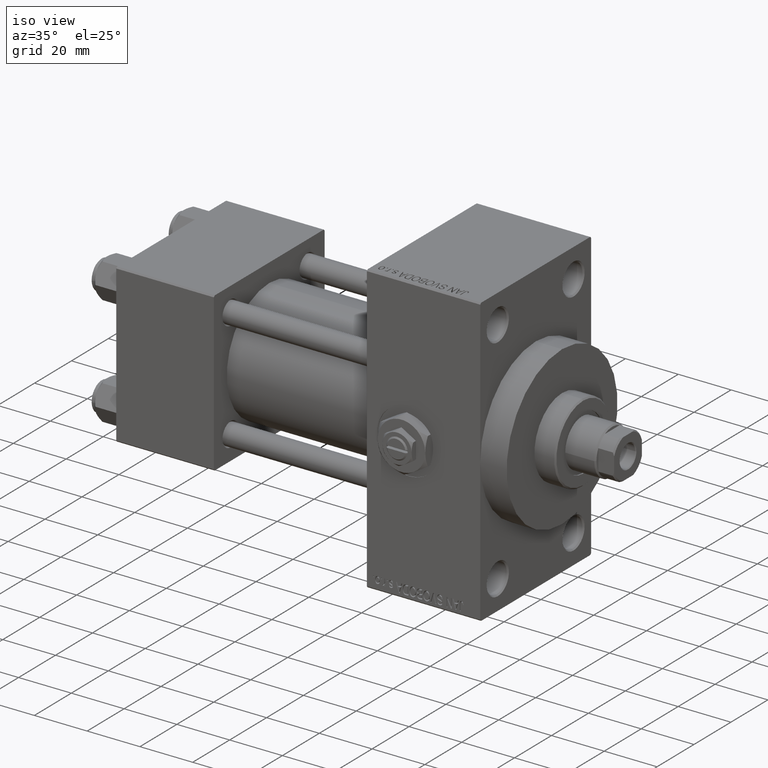
[diagram: clean part render]
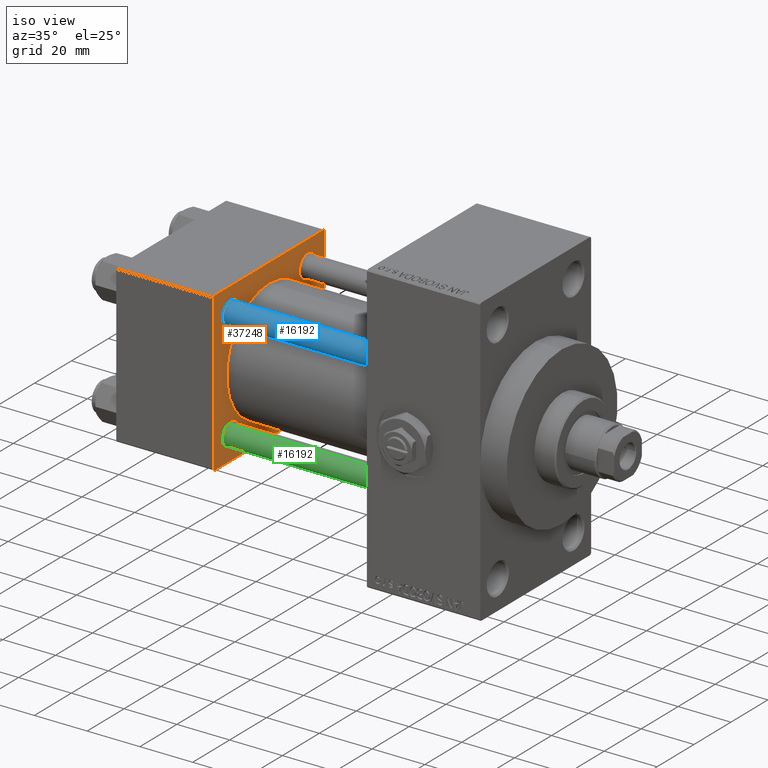
[diagram: same view with three faces highlighted in distinct colors, each labeled with its STEP entity id]
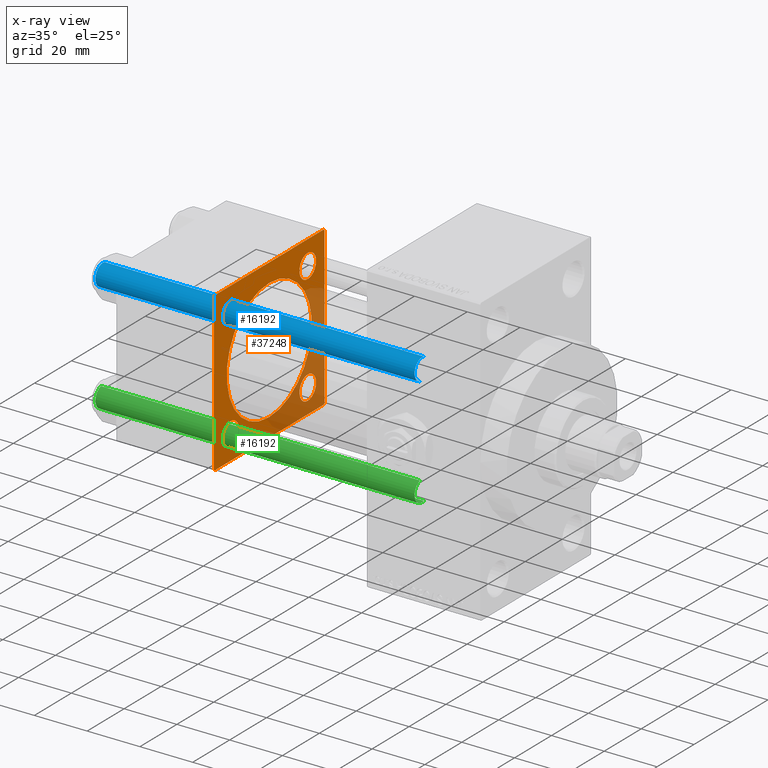
[diagram: x-ray of the same camera — body ghosted, the three highlighted faces saturated]
A machine part, iso view with three faces highlighted in distinct colors.
The next image is the same camera in x-ray (body ghosted, the three faces saturated) — at least one of them is partly hidden behind the body in this view.
Their STEP definitions:

[orange] entity #37248 — the highlighted planar face has unit normal (-1, 0, 0).
#614 = CARTESIAN_POINT ( 'NONE',  ( 37.00000000000000000, 20.84999999999999787, -16.35000000000002274 ) ) ;
#1567 = ORIENTED_EDGE ( 'NONE', *, *, #23536, .F. ) ;
#1606 = DIRECTION ( 'NONE',  ( -0.000000000000000000, 0.7071067811865574537, 0.7071067811865376918 ) ) ;
#1917 = CARTESIAN_POINT ( 'NONE',  ( 37.00000000000000000, 29.99999999999999289, -30.00000000000000000 ) ) ;
#2398 = LINE ( 'NONE', #6561, #14532 ) ;
#3251 = EDGE_LOOP ( 'NONE', ( #24930, #45841 ) ) ;
#3763 = CARTESIAN_POINT ( 'NONE',  ( 37.00000000000000000, 20.84999999999999787, 25.34999999999997655 ) ) ;
#3933 = DIRECTION ( 'NONE',  ( 0.000000000000000000, 0.7071067811865474617, -0.7071067811865474617 ) ) ;
#5045 = VERTEX_POINT ( 'NONE', #20585 ) ;
#5113 = AXIS2_PLACEMENT_3D ( 'NONE', #27568, #39592, #42583 ) ;
#5132 = EDGE_CURVE ( 'NONE', #28822, #14926, #47916, .T. ) ;
#5155 = DIRECTION ( 'NONE',  ( 0.000000000000000000, 0.000000000000000000, 1.000000000000000000 ) ) ;
#5293 = CARTESIAN_POINT ( 'NONE',  ( 37.00000000000000000, 29.99999999999999289, -29.50000000000000000 ) ) ;
#6010 = VERTEX_POINT ( 'NONE', #34360 ) ;
#6042 = DIRECTION ( 'NONE',  ( 0.000000000000000000, 0.000000000000000000, 1.000000000000000000 ) ) ;
#6050 = CARTESIAN_POINT ( 'NONE',  ( 37.00000000000000000, -2.602085213965210642E-15, 0.000000000000000000 ) ) ;
#6561 = CARTESIAN_POINT ( 'NONE',  ( 37.00000000000000000, 29.49999999999999289, 30.00000000000000000 ) ) ;
#7284 = CARTESIAN_POINT ( 'NONE',  ( 37.00000000000000000, 20.84999999999999787, 16.35000000000002274 ) ) ;
#7601 = PLANE ( 'NONE',  #38835 ) ;
#7690 = ORIENTED_EDGE ( 'NONE', *, *, #44117, .T. ) ;
#8450 = CIRCLE ( 'NONE', #18667, 23.00000000000000000 ) ;
#8544 = CARTESIAN_POINT ( 'NONE',  ( 37.00000000000000000, 20.84999999999999787, -20.85000000000000142 ) ) ;
#9352 = ORIENTED_EDGE ( 'NONE', *, *, #33840, .T. ) ;
#9428 = ORIENTED_EDGE ( 'NONE', *, *, #14517, .T. ) ;
#9498 = DIRECTION ( 'NONE',  ( 0.000000000000000000, 0.000000000000000000, 1.000000000000000000 ) ) ;
#9546 = ORIENTED_EDGE ( 'NONE', *, *, #28444, .F. ) ;
#9901 = CARTESIAN_POINT ( 'NONE',  ( 37.00000000000000000, -29.50000000000000000, -30.00000000000000711 ) ) ;
#9992 = VECTOR ( 'NONE', #35649, 1000.000000000000000 ) ;
#10010 = CARTESIAN_POINT ( 'NONE',  ( 37.00000000000000000, -20.84999999999999076, 25.34999999999998010 ) ) ;
#10171 = CIRCLE ( 'NONE', #28262, 4.499999999999976019 ) ;
#10404 = VERTEX_POINT ( 'NONE', #18314 ) ;
#10502 = LINE ( 'NONE', #21116, #9992 ) ;
#10644 = VERTEX_POINT ( 'NONE', #9901 ) ;
#10982 = CARTESIAN_POINT ( 'NONE',  ( 37.00000000000000000, -30.00000000000000000, 29.49999999999999289 ) ) ;
#11051 = DIRECTION ( 'NONE',  ( 0.000000000000000000, 0.000000000000000000, 1.000000000000000000 ) ) ;
#11530 = AXIS2_PLACEMENT_3D ( 'NONE', #43512, #40054, #25533 ) ;
#11533 = DIRECTION ( 'NONE',  ( -1.000000000000000000, 0.000000000000000000, -0.000000000000000000 ) ) ;
#11755 = VECTOR ( 'NONE', #1606, 999.9999999999998863 ) ;
#11768 = LINE ( 'NONE', #45509, #12823 ) ;
#11849 = CARTESIAN_POINT ( 'NONE',  ( 37.00000000000000000, 20.84999999999999787, -25.34999999999997655 ) ) ;
#12823 = VECTOR ( 'NONE', #45751, 1000.000000000000000 ) ;
#12858 = VERTEX_POINT ( 'NONE', #3763 ) ;
#13505 = CARTESIAN_POINT ( 'NONE',  ( 37.00000000000000000, 29.99999999999999289, -29.50000000000000000 ) ) ;
#13628 = CARTESIAN_POINT ( 'NONE',  ( 37.00000000000000000, -20.84999999999999076, 20.85000000000000497 ) ) ;
#14089 = AXIS2_PLACEMENT_3D ( 'NONE', #32889, #47183, #6042 ) ;
#14344 = DIRECTION ( 'NONE',  ( 0.000000000000000000, 0.000000000000000000, -1.000000000000000000 ) ) ;
#14517 = EDGE_CURVE ( 'NONE', #29066, #24616, #44733, .T. ) ;
#14532 = VECTOR ( 'NONE', #29238, 1000.000000000000114 ) ;
#14612 = EDGE_CURVE ( 'NONE', #27493, #21235, #42982, .T. ) ;
#14926 = VERTEX_POINT ( 'NONE', #23652 ) ;
#15486 = EDGE_LOOP ( 'NONE', ( #38561, #39045 ) ) ;
#16886 = CIRCLE ( 'NONE', #48375, 4.499999999999976019 ) ;
#17212 = VECTOR ( 'NONE', #14344, 1000.000000000000000 ) ;
#18039 = LINE ( 'NONE', #37495, #17212 ) ;
#18314 = CARTESIAN_POINT ( 'NONE',  ( 37.00000000000000000, -2.602085213965210642E-15, 23.00000000000000000 ) ) ;
#18667 = AXIS2_PLACEMENT_3D ( 'NONE', #6050, #40266, #32171 ) ;
#18920 = CARTESIAN_POINT ( 'NONE',  ( 37.00000000000000000, 29.49999999999997868, -30.00000000000000000 ) ) ;
#19160 = FACE_OUTER_BOUND ( 'NONE', #34488, .T. ) ;
#19549 = CARTESIAN_POINT ( 'NONE',  ( 37.00000000000000000, -20.84999999999999076, -16.35000000000002629 ) ) ;
#19605 = EDGE_LOOP ( 'NONE', ( #9352, #7690 ) ) ;
#19658 = CARTESIAN_POINT ( 'NONE',  ( 37.00000000000000000, 0.000000000000000000, 0.000000000000000000 ) ) ;
#20019 = ORIENTED_EDGE ( 'NONE', *, *, #48640, .T. ) ;
#20585 = CARTESIAN_POINT ( 'NONE',  ( 37.00000000000000000, 29.99999999999999289, 29.50000000000000000 ) ) ;
#20876 = VERTEX_POINT ( 'NONE', #614 ) ;
#21008 = VECTOR ( 'NONE', #28996, 1000.000000000000000 ) ;
#21116 = CARTESIAN_POINT ( 'NONE',  ( 37.00000000000000000, 29.99999999999999289, 30.00000000000000000 ) ) ;
#21235 = VERTEX_POINT ( 'NONE', #13505 ) ;
#21278 = DIRECTION ( 'NONE',  ( -1.000000000000000000, 0.000000000000000000, -0.000000000000000000 ) ) ;
#21647 = CARTESIAN_POINT ( 'NONE',  ( 37.00000000000000000, 2.146024240737012665E-16, -23.00000000000000000 ) ) ;
#21767 = DIRECTION ( 'NONE',  ( 0.000000000000000000, 0.000000000000000000, 1.000000000000000000 ) ) ;
#21770 = AXIS2_PLACEMENT_3D ( 'NONE', #13628, #21278, #21767 ) ;
#22174 = CARTESIAN_POINT ( 'NONE',  ( 37.00000000000000000, -2.602085213965210642E-15, 0.000000000000000000 ) ) ;
#22450 = EDGE_CURVE ( 'NONE', #14926, #28822, #43892, .T. ) ;
#22644 = LINE ( 'NONE', #34236, #40470 ) ;
#22772 = EDGE_CURVE ( 'NONE', #48698, #35842, #34370, .T. ) ;
#22862 = DIRECTION ( 'NONE',  ( -0.000000000000000000, 0.000000000000000000, 1.000000000000000000 ) ) ;
#23361 = FACE_BOUND ( 'NONE', #3251, .T. ) ;
#23413 = AXIS2_PLACEMENT_3D ( 'NONE', #22174, #44832, #40388 ) ;
#23536 = EDGE_CURVE ( 'NONE', #30705, #10404, #8450, .T. ) ;
#23543 = VECTOR ( 'NONE', #41025, 1000.000000000000114 ) ;
#23652 = CARTESIAN_POINT ( 'NONE',  ( 37.00000000000000000, -20.84999999999999076, -25.34999999999998010 ) ) ;
#23861 = DIRECTION ( 'NONE',  ( -1.000000000000000000, 0.000000000000000000, -0.000000000000000000 ) ) ;
#24616 = VERTEX_POINT ( 'NONE', #40192 ) ;
#24930 = ORIENTED_EDGE ( 'NONE', *, *, #22450, .T. ) ;
#25371 = DIRECTION ( 'NONE',  ( 0.000000000000000000, 0.000000000000000000, 1.000000000000000000 ) ) ;
#25533 = DIRECTION ( 'NONE',  ( 0.000000000000000000, 0.000000000000000000, 1.000000000000000000 ) ) ;
#25613 = DIRECTION ( 'NONE',  ( -1.000000000000000000, 0.000000000000000000, -0.000000000000000000 ) ) ;
#25795 = EDGE_CURVE ( 'NONE', #48088, #20876, #31852, .T. ) ;
#26811 = EDGE_LOOP ( 'NONE', ( #41014, #39641 ) ) ;
#27083 = CARTESIAN_POINT ( 'NONE',  ( 37.00000000000000000, 20.84999999999999787, 20.85000000000000142 ) ) ;
#27137 = ORIENTED_EDGE ( 'NONE', *, *, #35714, .T. ) ;
#27159 = CARTESIAN_POINT ( 'NONE',  ( 37.00000000000000000, -30.00000000000000000, -29.50000000000001776 ) ) ;
#27301 = FACE_BOUND ( 'NONE', #28066, .T. ) ;
#27345 = EDGE_CURVE ( 'NONE', #35842, #48698, #34138, .T. ) ;
#27493 = VERTEX_POINT ( 'NONE', #18920 ) ;
#27568 = CARTESIAN_POINT ( 'NONE',  ( 37.00000000000000000, 20.84999999999999787, 20.85000000000000142 ) ) ;
#27680 = VERTEX_POINT ( 'NONE', #7284 ) ;
#28066 = EDGE_LOOP ( 'NONE', ( #37476, #1567 ) ) ;
#28262 = AXIS2_PLACEMENT_3D ( 'NONE', #27083, #23861, #5155 ) ;
#28432 = EDGE_CURVE ( 'NONE', #6010, #29066, #10502, .T. ) ;
#28444 = EDGE_CURVE ( 'NONE', #27493, #10644, #43777, .T. ) ;
#28587 = CARTESIAN_POINT ( 'NONE',  ( 37.00000000000000000, -29.49999999999998579, 29.99999999999999289 ) ) ;
#28822 = VERTEX_POINT ( 'NONE', #19549 ) ;
#28884 = ORIENTED_EDGE ( 'NONE', *, *, #32182, .F. ) ;
#28996 = DIRECTION ( 'NONE',  ( 0.000000000000000000, -1.000000000000000000, -1.156482317317871725E-16 ) ) ;
#29066 = VERTEX_POINT ( 'NONE', #28587 ) ;
#29238 = DIRECTION ( 'NONE',  ( 0.000000000000000000, -0.7071067811865474617, 0.7071067811865474617 ) ) ;
#29280 = EDGE_CURVE ( 'NONE', #10404, #30705, #39109, .T. ) ;
#30015 = FACE_BOUND ( 'NONE', #15486, .T. ) ;
#30501 = FACE_BOUND ( 'NONE', #19605, .T. ) ;
#30705 = VERTEX_POINT ( 'NONE', #21647 ) ;
#31075 = VERTEX_POINT ( 'NONE', #27159 ) ;
#31852 = CIRCLE ( 'NONE', #42087, 4.499999999999976019 ) ;
#32171 = DIRECTION ( 'NONE',  ( 0.000000000000000000, 0.000000000000000000, 1.000000000000000000 ) ) ;
#32182 = EDGE_CURVE ( 'NONE', #5045, #21235, #18039, .T. ) ;
#32889 = CARTESIAN_POINT ( 'NONE',  ( 37.00000000000000000, -20.84999999999999076, -20.85000000000000497 ) ) ;
#33347 = ORIENTED_EDGE ( 'NONE', *, *, #14612, .T. ) ;
#33840 = EDGE_CURVE ( 'NONE', #27680, #12858, #10171, .T. ) ;
#34138 = CIRCLE ( 'NONE', #42008, 4.499999999999976019 ) ;
#34236 = CARTESIAN_POINT ( 'NONE',  ( 37.00000000000000000, -29.50000000000001066, -30.00000000000000711 ) ) ;
#34360 = CARTESIAN_POINT ( 'NONE',  ( 37.00000000000000000, 29.49999999999999289, 30.00000000000000000 ) ) ;
#34370 = CIRCLE ( 'NONE', #21770, 4.499999999999976019 ) ;
#34454 = FACE_BOUND ( 'NONE', #26811, .T. ) ;
#34488 = EDGE_LOOP ( 'NONE', ( #9546, #33347, #28884, #20019, #47794, #9428, #27137, #40448 ) ) ;
#35649 = DIRECTION ( 'NONE',  ( 0.000000000000000000, -1.000000000000000000, -1.156482317317871725E-16 ) ) ;
#35714 = EDGE_CURVE ( 'NONE', #24616, #31075, #11768, .T. ) ;
#35842 = VERTEX_POINT ( 'NONE', #36613 ) ;
#36613 = CARTESIAN_POINT ( 'NONE',  ( 37.00000000000000000, -20.84999999999999076, 16.35000000000002629 ) ) ;
#37248 = ADVANCED_FACE ( 'NONE', ( #23361, #30015, #34454, #30501, #27301, #19160 ), #7601, .F. ) ;
#37476 = ORIENTED_EDGE ( 'NONE', *, *, #29280, .F. ) ;
#37495 = CARTESIAN_POINT ( 'NONE',  ( 37.00000000000000000, 29.99999999999999289, 30.00000000000000000 ) ) ;
#38561 = ORIENTED_EDGE ( 'NONE', *, *, #25795, .T. ) ;
#38835 = AXIS2_PLACEMENT_3D ( 'NONE', #19658, #11533, #22862 ) ;
#39045 = ORIENTED_EDGE ( 'NONE', *, *, #44530, .T. ) ;
#39109 = CIRCLE ( 'NONE', #23413, 23.00000000000000000 ) ;
#39592 = DIRECTION ( 'NONE',  ( -1.000000000000000000, 0.000000000000000000, -0.000000000000000000 ) ) ;
#39641 = ORIENTED_EDGE ( 'NONE', *, *, #22772, .T. ) ;
#40054 = DIRECTION ( 'NONE',  ( -1.000000000000000000, 0.000000000000000000, -0.000000000000000000 ) ) ;
#40192 = CARTESIAN_POINT ( 'NONE',  ( 37.00000000000000000, -30.00000000000000000, 29.49999999999999289 ) ) ;
#40266 = DIRECTION ( 'NONE',  ( 1.000000000000000000, -0.000000000000000000, 0.000000000000000000 ) ) ;
#40388 = DIRECTION ( 'NONE',  ( 0.000000000000000000, 0.000000000000000000, 1.000000000000000000 ) ) ;
#40448 = ORIENTED_EDGE ( 'NONE', *, *, #44021, .T. ) ;
#40470 = VECTOR ( 'NONE', #3933, 1000.000000000000114 ) ;
#41014 = ORIENTED_EDGE ( 'NONE', *, *, #27345, .T. ) ;
#41025 = DIRECTION ( 'NONE',  ( -0.000000000000000000, -0.7071067811865474617, -0.7071067811865474617 ) ) ;
#41116 = DIRECTION ( 'NONE',  ( -1.000000000000000000, 0.000000000000000000, -0.000000000000000000 ) ) ;
#42008 = AXIS2_PLACEMENT_3D ( 'NONE', #44802, #25613, #11051 ) ;
#42087 = AXIS2_PLACEMENT_3D ( 'NONE', #48281, #41116, #25371 ) ;
#42583 = DIRECTION ( 'NONE',  ( 0.000000000000000000, 0.000000000000000000, 1.000000000000000000 ) ) ;
#42982 = LINE ( 'NONE', #5293, #11755 ) ;
#43253 = DIRECTION ( 'NONE',  ( -1.000000000000000000, 0.000000000000000000, -0.000000000000000000 ) ) ;
#43512 = CARTESIAN_POINT ( 'NONE',  ( 37.00000000000000000, -20.84999999999999076, -20.85000000000000497 ) ) ;
#43777 = LINE ( 'NONE', #1917, #21008 ) ;
#43892 = CIRCLE ( 'NONE', #11530, 4.499999999999976019 ) ;
#44021 = EDGE_CURVE ( 'NONE', #31075, #10644, #22644, .T. ) ;
#44117 = EDGE_CURVE ( 'NONE', #12858, #27680, #44423, .T. ) ;
#44423 = CIRCLE ( 'NONE', #5113, 4.499999999999976019 ) ;
#44530 = EDGE_CURVE ( 'NONE', #20876, #48088, #16886, .T. ) ;
#44733 = LINE ( 'NONE', #10982, #23543 ) ;
#44802 = CARTESIAN_POINT ( 'NONE',  ( 37.00000000000000000, -20.84999999999999076, 20.85000000000000497 ) ) ;
#44832 = DIRECTION ( 'NONE',  ( 1.000000000000000000, -0.000000000000000000, 0.000000000000000000 ) ) ;
#45509 = CARTESIAN_POINT ( 'NONE',  ( 37.00000000000000000, -30.00000000000000000, 29.99999999999999289 ) ) ;
#45751 = DIRECTION ( 'NONE',  ( 0.000000000000000000, 0.000000000000000000, -1.000000000000000000 ) ) ;
#45841 = ORIENTED_EDGE ( 'NONE', *, *, #5132, .T. ) ;
#47183 = DIRECTION ( 'NONE',  ( -1.000000000000000000, 0.000000000000000000, -0.000000000000000000 ) ) ;
#47794 = ORIENTED_EDGE ( 'NONE', *, *, #28432, .T. ) ;
#47916 = CIRCLE ( 'NONE', #14089, 4.499999999999976019 ) ;
#48088 = VERTEX_POINT ( 'NONE', #11849 ) ;
#48281 = CARTESIAN_POINT ( 'NONE',  ( 37.00000000000000000, 20.84999999999999787, -20.85000000000000142 ) ) ;
#48375 = AXIS2_PLACEMENT_3D ( 'NONE', #8544, #43253, #9498 ) ;
#48640 = EDGE_CURVE ( 'NONE', #5045, #6010, #2398, .T. ) ;
#48698 = VERTEX_POINT ( 'NONE', #10010 ) ;

[blue] entity #16192 — the highlighted cylindrical surface (edge-blend (fillet) strip) has radius 4 mm, axis along (1, 0, 0).
#2043 = AXIS2_PLACEMENT_3D ( 'NONE', #37016, #10412, #41186 ) ;
#3441 = VECTOR ( 'NONE', #29235, 1000.000000000000000 ) ;
#3547 = DIRECTION ( 'NONE',  ( -0.000000000000000000, -0.000000000000000000, 1.000000000000000000 ) ) ;
#3636 = CARTESIAN_POINT ( 'NONE',  ( 0.000000000000000000, 0.000000000000000000, 122.0000000000000000 ) ) ;
#4220 = EDGE_CURVE ( 'NONE', #27094, #25568, #46308, .T. ) ;
#6390 = ORIENTED_EDGE ( 'NONE', *, *, #37433, .F. ) ;
#6994 = DIRECTION ( 'NONE',  ( 1.000000000000000000, 0.000000000000000000, 0.000000000000000000 ) ) ;
#9716 = VECTOR ( 'NONE', #28022, 1000.000000000000000 ) ;
#10412 = DIRECTION ( 'NONE',  ( 0.000000000000000000, 0.000000000000000000, -1.000000000000000000 ) ) ;
#10780 = DIRECTION ( 'NONE',  ( -1.000000000000000000, 0.000000000000000000, 0.000000000000000000 ) ) ;
#12813 = EDGE_CURVE ( 'NONE', #21981, #23360, #44507, .T. ) ;
#16192 = ADVANCED_FACE ( 'NONE', ( #33932 ), #36655, .T. ) ;
#16674 = LINE ( 'NONE', #31699, #9716 ) ;
#21603 = CARTESIAN_POINT ( 'NONE',  ( -4.000000000000000000, 0.000000000000000000, 122.0000000000000000 ) ) ;
#21981 = VERTEX_POINT ( 'NONE', #36783 ) ;
#22340 = DIRECTION ( 'NONE',  ( -0.000000000000000000, -0.000000000000000000, -1.000000000000000000 ) ) ;
#23360 = VERTEX_POINT ( 'NONE', #29056 ) ;
#24360 = ORIENTED_EDGE ( 'NONE', *, *, #12813, .T. ) ;
#25140 = ORIENTED_EDGE ( 'NONE', *, *, #36562, .T. ) ;
#25568 = VERTEX_POINT ( 'NONE', #40749 ) ;
#27051 = ORIENTED_EDGE ( 'NONE', *, *, #4220, .T. ) ;
#27094 = VERTEX_POINT ( 'NONE', #40420 ) ;
#28022 = DIRECTION ( 'NONE',  ( -0.000000000000000000, -0.000000000000000000, -1.000000000000000000 ) ) ;
#29056 = CARTESIAN_POINT ( 'NONE',  ( 4.000000000000000000, 4.898587196589411843E-16, 121.5000000000000426 ) ) ;
#29235 = DIRECTION ( 'NONE',  ( -0.000000000000000000, -0.000000000000000000, -1.000000000000000000 ) ) ;
#29412 = CARTESIAN_POINT ( 'NONE',  ( 0.000000000000000000, 0.000000000000000000, 0.5000000000000559552 ) ) ;
#31699 = CARTESIAN_POINT ( 'NONE',  ( 4.000000000000000000, 4.898587196589411843E-16, 122.0000000000000000 ) ) ;
#33932 = FACE_OUTER_BOUND ( 'NONE', #34802, .T. ) ;
#34802 = EDGE_LOOP ( 'NONE', ( #24360, #25140, #27051, #6390 ) ) ;
#35298 = AXIS2_PLACEMENT_3D ( 'NONE', #29412, #3547, #6994 ) ;
#36562 = EDGE_CURVE ( 'NONE', #23360, #27094, #16674, .T. ) ;
#36655 = CYLINDRICAL_SURFACE ( 'NONE', #40909, 4.000000000000000000 ) ;
#36783 = CARTESIAN_POINT ( 'NONE',  ( -4.000000000000000000, 0.000000000000000000, 121.5000000000000426 ) ) ;
#37016 = CARTESIAN_POINT ( 'NONE',  ( 0.000000000000000000, 0.000000000000000000, 121.5000000000000426 ) ) ;
#37433 = EDGE_CURVE ( 'NONE', #21981, #25568, #44745, .T. ) ;
#40420 = CARTESIAN_POINT ( 'NONE',  ( 4.000000000000000000, 4.898587196589411843E-16, 0.5000000000000559552 ) ) ;
#40749 = CARTESIAN_POINT ( 'NONE',  ( -4.000000000000000000, 0.000000000000000000, 0.5000000000000559552 ) ) ;
#40909 = AXIS2_PLACEMENT_3D ( 'NONE', #3636, #22340, #10780 ) ;
#41186 = DIRECTION ( 'NONE',  ( 1.000000000000000000, 0.000000000000000000, 0.000000000000000000 ) ) ;
#44507 = CIRCLE ( 'NONE', #2043, 4.000000000000000000 ) ;
#44745 = LINE ( 'NONE', #21603, #3441 ) ;
#46308 = CIRCLE ( 'NONE', #35298, 4.000000000000000000 ) ;

[green] entity #16192 — the highlighted cylindrical surface (edge-blend (fillet) strip) has radius 4 mm, axis along (-1, 0, 0).
#2043 = AXIS2_PLACEMENT_3D ( 'NONE', #37016, #10412, #41186 ) ;
#3441 = VECTOR ( 'NONE', #29235, 1000.000000000000000 ) ;
#3547 = DIRECTION ( 'NONE',  ( -0.000000000000000000, -0.000000000000000000, 1.000000000000000000 ) ) ;
#3636 = CARTESIAN_POINT ( 'NONE',  ( 0.000000000000000000, 0.000000000000000000, 122.0000000000000000 ) ) ;
#4220 = EDGE_CURVE ( 'NONE', #27094, #25568, #46308, .T. ) ;
#6390 = ORIENTED_EDGE ( 'NONE', *, *, #37433, .F. ) ;
#6994 = DIRECTION ( 'NONE',  ( 1.000000000000000000, 0.000000000000000000, 0.000000000000000000 ) ) ;
#9716 = VECTOR ( 'NONE', #28022, 1000.000000000000000 ) ;
#10412 = DIRECTION ( 'NONE',  ( 0.000000000000000000, 0.000000000000000000, -1.000000000000000000 ) ) ;
#10780 = DIRECTION ( 'NONE',  ( -1.000000000000000000, 0.000000000000000000, 0.000000000000000000 ) ) ;
#12813 = EDGE_CURVE ( 'NONE', #21981, #23360, #44507, .T. ) ;
#16192 = ADVANCED_FACE ( 'NONE', ( #33932 ), #36655, .T. ) ;
#16674 = LINE ( 'NONE', #31699, #9716 ) ;
#21603 = CARTESIAN_POINT ( 'NONE',  ( -4.000000000000000000, 0.000000000000000000, 122.0000000000000000 ) ) ;
#21981 = VERTEX_POINT ( 'NONE', #36783 ) ;
#22340 = DIRECTION ( 'NONE',  ( -0.000000000000000000, -0.000000000000000000, -1.000000000000000000 ) ) ;
#23360 = VERTEX_POINT ( 'NONE', #29056 ) ;
#24360 = ORIENTED_EDGE ( 'NONE', *, *, #12813, .T. ) ;
#25140 = ORIENTED_EDGE ( 'NONE', *, *, #36562, .T. ) ;
#25568 = VERTEX_POINT ( 'NONE', #40749 ) ;
#27051 = ORIENTED_EDGE ( 'NONE', *, *, #4220, .T. ) ;
#27094 = VERTEX_POINT ( 'NONE', #40420 ) ;
#28022 = DIRECTION ( 'NONE',  ( -0.000000000000000000, -0.000000000000000000, -1.000000000000000000 ) ) ;
#29056 = CARTESIAN_POINT ( 'NONE',  ( 4.000000000000000000, 4.898587196589411843E-16, 121.5000000000000426 ) ) ;
#29235 = DIRECTION ( 'NONE',  ( -0.000000000000000000, -0.000000000000000000, -1.000000000000000000 ) ) ;
#29412 = CARTESIAN_POINT ( 'NONE',  ( 0.000000000000000000, 0.000000000000000000, 0.5000000000000559552 ) ) ;
#31699 = CARTESIAN_POINT ( 'NONE',  ( 4.000000000000000000, 4.898587196589411843E-16, 122.0000000000000000 ) ) ;
#33932 = FACE_OUTER_BOUND ( 'NONE', #34802, .T. ) ;
#34802 = EDGE_LOOP ( 'NONE', ( #24360, #25140, #27051, #6390 ) ) ;
#35298 = AXIS2_PLACEMENT_3D ( 'NONE', #29412, #3547, #6994 ) ;
#36562 = EDGE_CURVE ( 'NONE', #23360, #27094, #16674, .T. ) ;
#36655 = CYLINDRICAL_SURFACE ( 'NONE', #40909, 4.000000000000000000 ) ;
#36783 = CARTESIAN_POINT ( 'NONE',  ( -4.000000000000000000, 0.000000000000000000, 121.5000000000000426 ) ) ;
#37016 = CARTESIAN_POINT ( 'NONE',  ( 0.000000000000000000, 0.000000000000000000, 121.5000000000000426 ) ) ;
#37433 = EDGE_CURVE ( 'NONE', #21981, #25568, #44745, .T. ) ;
#40420 = CARTESIAN_POINT ( 'NONE',  ( 4.000000000000000000, 4.898587196589411843E-16, 0.5000000000000559552 ) ) ;
#40749 = CARTESIAN_POINT ( 'NONE',  ( -4.000000000000000000, 0.000000000000000000, 0.5000000000000559552 ) ) ;
#40909 = AXIS2_PLACEMENT_3D ( 'NONE', #3636, #22340, #10780 ) ;
#41186 = DIRECTION ( 'NONE',  ( 1.000000000000000000, 0.000000000000000000, 0.000000000000000000 ) ) ;
#44507 = CIRCLE ( 'NONE', #2043, 4.000000000000000000 ) ;
#44745 = LINE ( 'NONE', #21603, #3441 ) ;
#46308 = CIRCLE ( 'NONE', #35298, 4.000000000000000000 ) ;